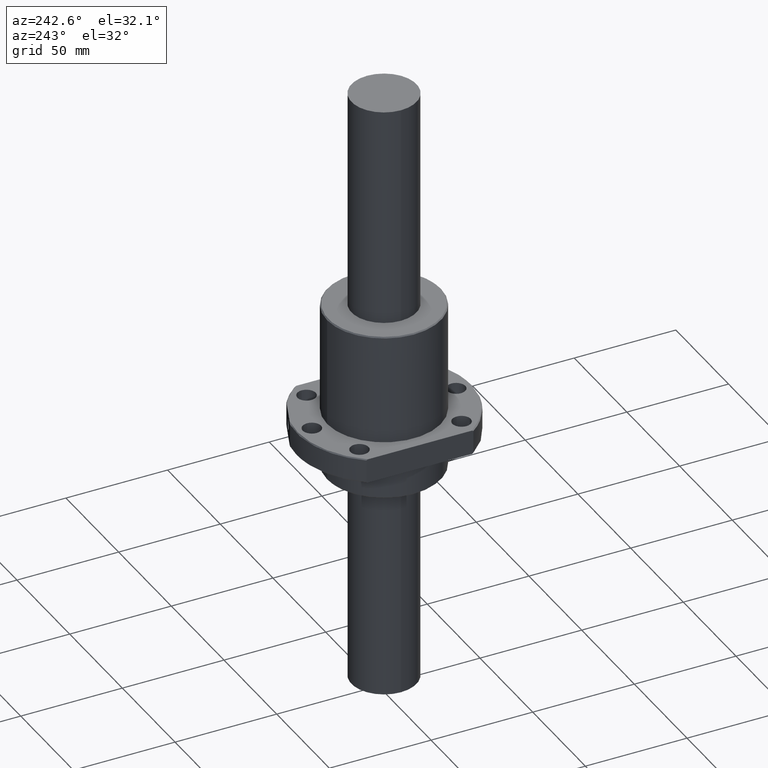
[diagram: clean part render]
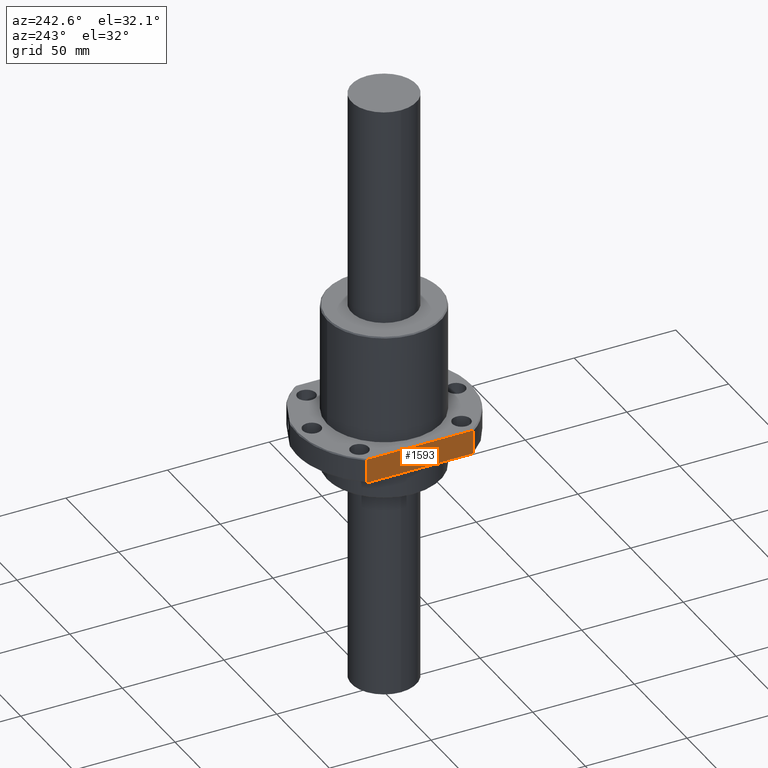
[diagram: same view with one face highlighted and labeled with its STEP entity id]
A machine part, auxiliary view. The second image highlights one B-rep face of the part: STEP entity #1593.
In plain terms, the highlighted planar face has unit normal (-1, 0, 0).
Its self-contained STEP definition (entity closure, byte-faithful):
#33 = ORIENTED_EDGE ( 'NONE', *, *, #640, .T. ) ;
#41 = EDGE_CURVE ( 'NONE', #1288, #372, #355, .T. ) ;
#63 = CARTESIAN_POINT ( 'NONE',  ( 33.99961900000000300, -25.63834637993025500, -28.99999399656583100 ) ) ;
#115 = CARTESIAN_POINT ( 'NONE',  ( 33.99961899489785100, 26.32520831024593700, -17.41703822865496300 ) ) ;
#209 = EDGE_CURVE ( 'NONE', #372, #1608, #1316, .T. ) ;
#299 = B_SPLINE_CURVE_WITH_KNOTS ( 'NONE', 3,
 ( #422, #409, #403, #401 ),
 .UNSPECIFIED., .F., .F.,
 ( 4, 4 ),
 ( 3.058444200616246900E-008, 0.0008035884148072553200 ),
 .UNSPECIFIED. ) ;
#325 = EDGE_CURVE ( 'NONE', #1919, #1097, #1137, .T. ) ;
#355 = B_SPLINE_CURVE_WITH_KNOTS ( 'NONE', 3,
 ( #1560, #1558, #1556, #1553 ),
 .UNSPECIFIED., .F., .F.,
 ( 4, 4 ),
 ( 0.0000000000000000000, 0.0008035578242917944300 ),
 .UNSPECIFIED. ) ;
#372 = VERTEX_POINT ( 'NONE', #1125 ) ;
#401 = CARTESIAN_POINT ( 'NONE',  ( 33.99961900000000300, 25.63834637422642600, -16.99999400000000100 ) ) ;
#403 = CARTESIAN_POINT ( 'NONE',  ( 33.99961900000000300, 25.86781710617712100, -17.13815409173763300 ) ) ;
#409 = CARTESIAN_POINT ( 'NONE',  ( 33.99961900000000300, 26.09676688924792000, -17.27718281075966900 ) ) ;
#414 = CARTESIAN_POINT ( 'NONE',  ( 33.99961900000000300, 25.63834638189373600, -28.99999399538365500 ) ) ;
#421 = VECTOR ( 'NONE', #1623, 1000.000000000000000 ) ;
#422 = CARTESIAN_POINT ( 'NONE',  ( 33.99961899489785100, 26.32520831024593700, -17.41703822865496300 ) ) ;
#450 = AXIS2_PLACEMENT_3D ( 'NONE', #984, #1611, #555 ) ;
#457 = CARTESIAN_POINT ( 'NONE',  ( 33.99961899939423700, -26.32520829885240200, -28.58294977476508300 ) ) ;
#555 = DIRECTION ( 'NONE',  ( 0.0000000000000000000, 1.000000000000000000, 0.0000000000000000000 ) ) ;
#600 = DIRECTION ( 'NONE',  ( 0.0000000000000000000, 1.000000000000000000, 0.0000000000000000000 ) ) ;
#607 = CARTESIAN_POINT ( 'NONE',  ( 33.99961900000000300, 0.0000000000000000000, -28.99999400000000100 ) ) ;
#610 = LINE ( 'NONE', #607, #1074 ) ;
#640 = EDGE_CURVE ( 'NONE', #1846, #1919, #948, .T. ) ;
#680 = CARTESIAN_POINT ( 'NONE',  ( 33.99961900000000300, 25.63834637422642600, -16.99999400000000100 ) ) ;
#703 = CARTESIAN_POINT ( 'NONE',  ( 33.99961899772807800, -26.32520830100429900, -17.41703822523492200 ) ) ;
#707 = CARTESIAN_POINT ( 'NONE',  ( 33.99961900000000300, -26.09676688417602400, -17.27718280768197800 ) ) ;
#708 = CARTESIAN_POINT ( 'NONE',  ( 33.99961900000000300, -25.86781710429845700, -17.13815409061109200 ) ) ;
#711 = CARTESIAN_POINT ( 'NONE',  ( 33.99961900000000300, -25.63834638050573700, -16.99999400378065700 ) ) ;
#744 = EDGE_CURVE ( 'NONE', #1642, #1288, #610, .T. ) ;
#853 = EDGE_CURVE ( 'NONE', #1608, #1968, #299, .T. ) ;
#878 = CARTESIAN_POINT ( 'NONE',  ( 33.99961900000000300, -26.09676688274592800, -28.72280519318833600 ) ) ;
#886 = CARTESIAN_POINT ( 'NONE',  ( 33.99961899772807800, -26.32520830100429900, -17.41703822523492200 ) ) ;
#918 = FACE_OUTER_BOUND ( 'NONE', #1677, .T. ) ;
#919 = CARTESIAN_POINT ( 'NONE',  ( 33.99961899939423700, -26.32520829885240200, -28.58294977476508300 ) ) ;
#948 = B_SPLINE_CURVE_WITH_KNOTS ( 'NONE', 3,
 ( #711, #708, #707, #703 ),
 .UNSPECIFIED., .F., .F.,
 ( 4, 4 ),
 ( 0.0000000000000000000, 0.0008035578191392776700 ),
 .UNSPECIFIED. ) ;
#984 = CARTESIAN_POINT ( 'NONE',  ( 33.99961900000000300, -26.32520829800000000, -28.99999400000000100 ) ) ;
#1074 = VECTOR ( 'NONE', #600, 1000.000000000000000 ) ;
#1097 = VERTEX_POINT ( 'NONE', #919 ) ;
#1125 = CARTESIAN_POINT ( 'NONE',  ( 33.99961899412803500, 26.32520830942040700, -28.58294977245912700 ) ) ;
#1127 = DIRECTION ( 'NONE',  ( -0.0000000000000000000, -0.0000000000000000000, -1.000000000000000000 ) ) ;
#1130 = CARTESIAN_POINT ( 'NONE',  ( 33.99961900000000300, -26.32520829800000000, -22.99999400000000400 ) ) ;
#1137 = LINE ( 'NONE', #1130, #1722 ) ;
#1159 = CARTESIAN_POINT ( 'NONE',  ( 33.99961900000000300, 0.0000000000000000000, -16.99999400000000100 ) ) ;
#1185 = EDGE_CURVE ( 'NONE', #1968, #1846, #1573, .T. ) ;
#1288 = VERTEX_POINT ( 'NONE', #414 ) ;
#1306 = DIRECTION ( 'NONE',  ( 0.0000000000000000000, 0.0000000000000000000, 1.000000000000000000 ) ) ;
#1308 = CARTESIAN_POINT ( 'NONE',  ( 33.99961898825606000, 26.32520831330771900, -22.99999400000000400 ) ) ;
#1316 = LINE ( 'NONE', #1308, #1433 ) ;
#1398 = CARTESIAN_POINT ( 'NONE',  ( 33.99961900000000300, -25.63834638050573700, -16.99999400378065700 ) ) ;
#1433 = VECTOR ( 'NONE', #1306, 1000.000000000000000 ) ;
#1450 = ORIENTED_EDGE ( 'NONE', *, *, #744, .T. ) ;
#1516 = CARTESIAN_POINT ( 'NONE',  ( 33.99961900000000300, -25.86781710300761700, -28.86183391017005200 ) ) ;
#1523 = B_SPLINE_CURVE_WITH_KNOTS ( 'NONE', 3,
 ( #457, #878, #1516, #63 ),
 .UNSPECIFIED., .F., .F.,
 ( 4, 4 ),
 ( 5.006220420710715300E-008, 0.0008036078808475674300 ),
 .UNSPECIFIED. ) ;
#1553 = CARTESIAN_POINT ( 'NONE',  ( 33.99961899412803500, 26.32520830942040700, -28.58294977245912700 ) ) ;
#1556 = CARTESIAN_POINT ( 'NONE',  ( 33.99961900000000300, 26.09676688987794800, -28.72280518885098000 ) ) ;
#1558 = CARTESIAN_POINT ( 'NONE',  ( 33.99961900107496100, 25.86781710883491000, -28.86183390731177000 ) ) ;
#1560 = CARTESIAN_POINT ( 'NONE',  ( 33.99961900000000300, 25.63834638189373600, -28.99999399538365500 ) ) ;
#1566 = ORIENTED_EDGE ( 'NONE', *, *, #1588, .T. ) ;
#1573 = LINE ( 'NONE', #1159, #421 ) ;
#1588 = EDGE_CURVE ( 'NONE', #1097, #1642, #1523, .T. ) ;
#1592 = ORIENTED_EDGE ( 'NONE', *, *, #209, .T. ) ;
#1593 = ADVANCED_FACE ( 'NONE', ( #918 ), #1926, .T. ) ;
#1595 = ORIENTED_EDGE ( 'NONE', *, *, #41, .T. ) ;
#1608 = VERTEX_POINT ( 'NONE', #115 ) ;
#1609 = CARTESIAN_POINT ( 'NONE',  ( 33.99961900000000300, -25.63834637993025500, -28.99999399656583100 ) ) ;
#1611 = DIRECTION ( 'NONE',  ( 1.000000000000000000, 0.0000000000000000000, 0.0000000000000000000 ) ) ;
#1615 = ORIENTED_EDGE ( 'NONE', *, *, #853, .T. ) ;
#1623 = DIRECTION ( 'NONE',  ( -0.0000000000000000000, -1.000000000000000000, -0.0000000000000000000 ) ) ;
#1633 = ORIENTED_EDGE ( 'NONE', *, *, #1185, .T. ) ;
#1642 = VERTEX_POINT ( 'NONE', #1609 ) ;
#1677 = EDGE_LOOP ( 'NONE', ( #33, #1733, #1566, #1450, #1595, #1592, #1615, #1633 ) ) ;
#1722 = VECTOR ( 'NONE', #1127, 1000.000000000000000 ) ;
#1733 = ORIENTED_EDGE ( 'NONE', *, *, #325, .T. ) ;
#1846 = VERTEX_POINT ( 'NONE', #1398 ) ;
#1919 = VERTEX_POINT ( 'NONE', #886 ) ;
#1926 = PLANE ( 'NONE',  #450 ) ;
#1968 = VERTEX_POINT ( 'NONE', #680 ) ;